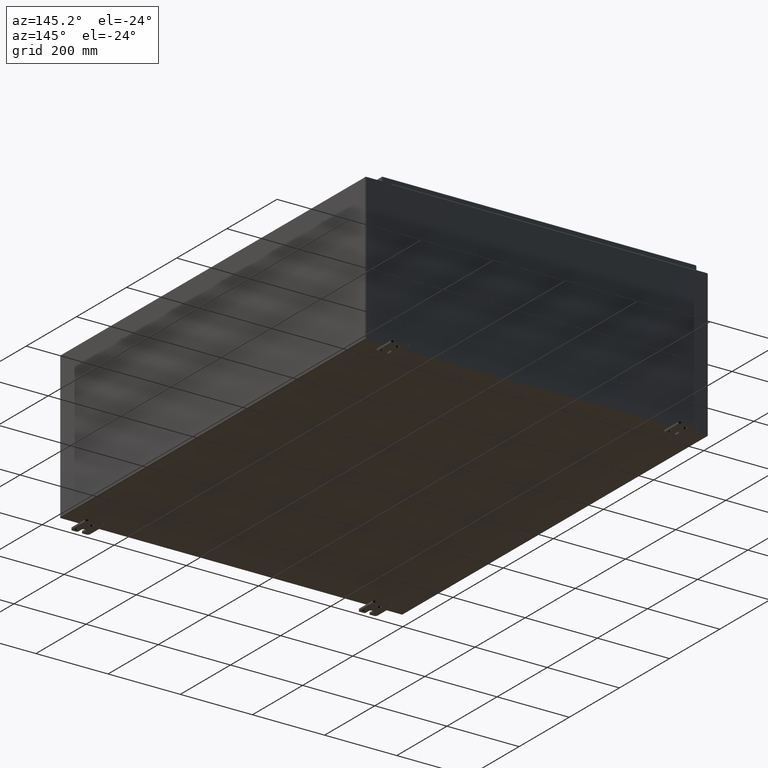
[diagram: clean part render]
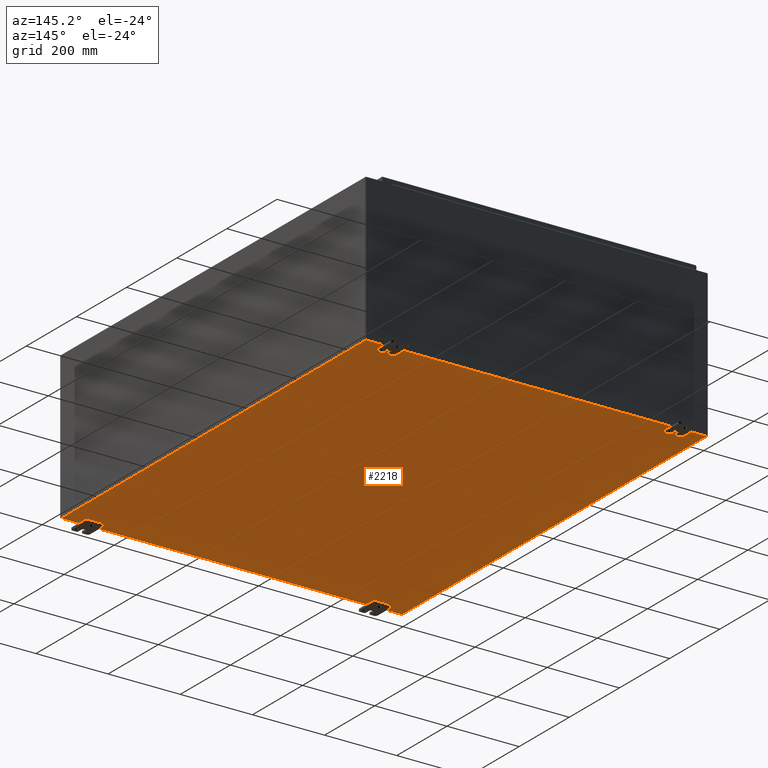
[diagram: same view with one face highlighted and labeled with its STEP entity id]
A machine part, auxiliary view. The second image highlights one B-rep face of the part: STEP entity #2218.
In plain terms, the highlighted planar face has unit normal (0, 0, 1).
Its self-contained STEP definition (entity closure, byte-faithful):
#1739=CARTESIAN_POINT('',(37.269749999999995,47.852000000000011,-2.185478E-017));
#1740=VERTEX_POINT('',#1739);
#1748=CARTESIAN_POINT('',(0.105249999999985,47.852000000000004,-2.185478E-017));
#1749=VERTEX_POINT('',#1748);
#1750=CARTESIAN_POINT('',(37.269749999999995,47.852000000000011,0.0));
#1751=DIRECTION('',(-1.0,0.0,0.0));
#1752=VECTOR('',#1751,37.164500000000011);
#1753=LINE('',#1750,#1752);
#1754=EDGE_CURVE('',#1740,#1749,#1753,.T.);
#1947=CARTESIAN_POINT('',(0.10525,3.222352E-017,-2.185478E-017));
#1948=VERTEX_POINT('',#1947);
#1956=CARTESIAN_POINT('',(37.269750000000002,-2.461152E-017,-2.185478E-017));
#1957=VERTEX_POINT('',#1956);
#1958=CARTESIAN_POINT('',(0.10525,0.0,0.0));
#1959=DIRECTION('',(1.0,0.0,0.0));
#1960=VECTOR('',#1959,37.164500000000004);
#1961=LINE('',#1958,#1960);
#1962=EDGE_CURVE('',#1948,#1957,#1961,.T.);
#2112=CARTESIAN_POINT('',(0.105250000000001,0.0,0.0));
#2113=DIRECTION('',(0.0,1.0,0.0));
#2114=VECTOR('',#2113,47.852000000000004);
#2115=LINE('',#2112,#2114);
#2116=EDGE_CURVE('',#1948,#1749,#2115,.T.);
#2168=CARTESIAN_POINT('',(37.269749999999995,47.852000000000011,0.0));
#2169=DIRECTION('',(0.0,-1.0,0.0));
#2170=VECTOR('',#2169,47.852000000000011);
#2171=LINE('',#2168,#2170);
#2172=EDGE_CURVE('',#1740,#1957,#2171,.T.);
#2207=CARTESIAN_POINT('',(18.687499999999996,23.926000000000009,0.0));
#2208=DIRECTION('',(0.0,0.0,1.0));
#2209=DIRECTION('',(1.0,0.0,0.0));
#2210=AXIS2_PLACEMENT_3D('',#2207,#2208,#2209);
#2211=PLANE('',#2210);
#2212=ORIENTED_EDGE('',*,*,#2172,.T.);
#2213=ORIENTED_EDGE('',*,*,#1962,.F.);
#2214=ORIENTED_EDGE('',*,*,#2116,.T.);
#2215=ORIENTED_EDGE('',*,*,#1754,.F.);
#2216=EDGE_LOOP('',(#2212,#2213,#2214,#2215));
#2217=FACE_OUTER_BOUND('',#2216,.T.);
#2218=ADVANCED_FACE('',(#2217),#2211,.F.);